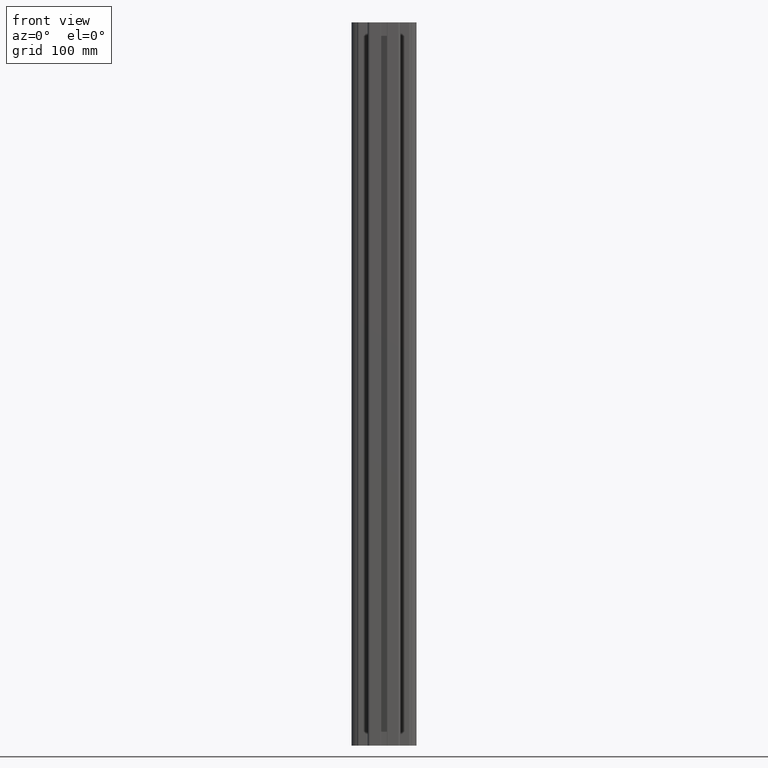
[diagram: clean part render]
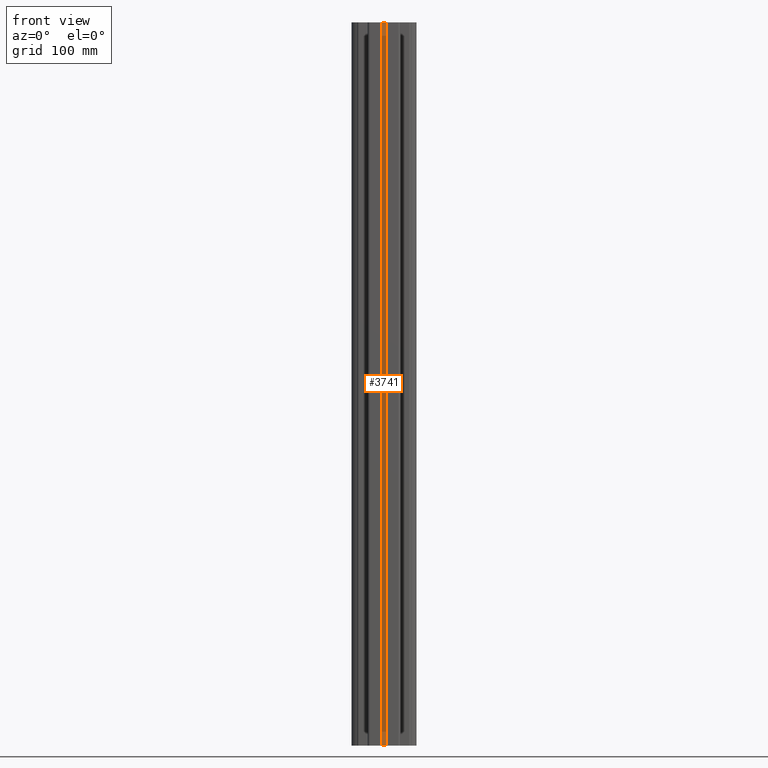
[diagram: same view with one face highlighted and labeled with its STEP entity id]
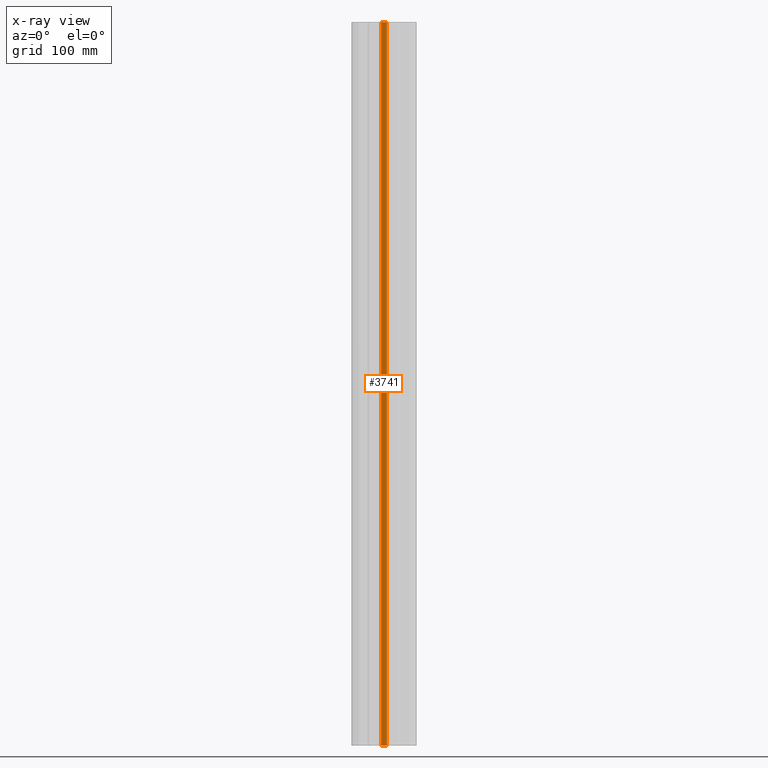
[diagram: x-ray of the same camera — body ghosted, the highlighted face saturated]
A machine part, front view. The second image highlights one B-rep face of the part: STEP entity #3741.
The next image is the same camera in x-ray: the body ghosted, the highlighted face saturated — about 0% of this face is hidden behind the body in this view.
In plain terms, the highlighted planar face has unit normal (0, -1, 0).
Its self-contained STEP definition (entity closure, byte-faithful):
#74=PLANE('',#4157);
#187=FACE_OUTER_BOUND('',#388,.T.);
#388=EDGE_LOOP('',(#2866,#2867,#2868,#2869));
#854=LINE('',#5905,#1193);
#932=LINE('',#6248,#1271);
#933=LINE('',#6251,#1272);
#934=LINE('',#6252,#1273);
#1193=VECTOR('',#4678,10.);
#1271=VECTOR('',#4994,10.);
#1272=VECTOR('',#4997,10.);
#1273=VECTOR('',#4998,10.);
#1551=VERTEX_POINT('',#5902);
#1552=VERTEX_POINT('',#5904);
#1698=VERTEX_POINT('',#6246);
#1699=VERTEX_POINT('',#6250);
#1979=EDGE_CURVE('',#1551,#1552,#854,.T.);
#2151=EDGE_CURVE('',#1698,#1551,#932,.T.);
#2152=EDGE_CURVE('',#1699,#1698,#933,.T.);
#2153=EDGE_CURVE('',#1699,#1552,#934,.T.);
#2866=ORIENTED_EDGE('',*,*,#2151,.F.);
#2867=ORIENTED_EDGE('',*,*,#2152,.F.);
#2868=ORIENTED_EDGE('',*,*,#2153,.T.);
#2869=ORIENTED_EDGE('',*,*,#1979,.F.);
#3741=ADVANCED_FACE('',(#187),#74,.T.);
#4157=AXIS2_PLACEMENT_3D('',#6249,#4995,#4996);
#4678=DIRECTION('',(-1.,-2.27737962537845E-15,0.));
#4994=DIRECTION('',(0.,0.,-1.));
#4995=DIRECTION('center_axis',(2.27737962537845E-15,-1.,0.));
#4996=DIRECTION('ref_axis',(1.,2.27737962537845E-15,0.));
#4997=DIRECTION('',(1.,2.27737962537845E-15,0.));
#4998=DIRECTION('',(0.,0.,-1.));
#5902=CARTESIAN_POINT('',(3.9000032124774,15.0000000000086,-500.));
#5904=CARTESIAN_POINT('',(-3.90000000000878,15.0000000000086,-500.));
#5905=CARTESIAN_POINT('',(3.9000032124774,15.0000000000086,-500.));
#6246=CARTESIAN_POINT('',(3.9000032124774,15.0000000000086,500.));
#6248=CARTESIAN_POINT('',(3.9000032124774,15.0000000000086,0.));
#6249=CARTESIAN_POINT('Origin',(-3.90000000000878,15.0000000000086,0.));
#6250=CARTESIAN_POINT('',(-3.90000000000878,15.0000000000086,500.));
#6251=CARTESIAN_POINT('',(3.9000032124774,15.0000000000086,500.));
#6252=CARTESIAN_POINT('',(-3.90000000000878,15.0000000000086,0.));